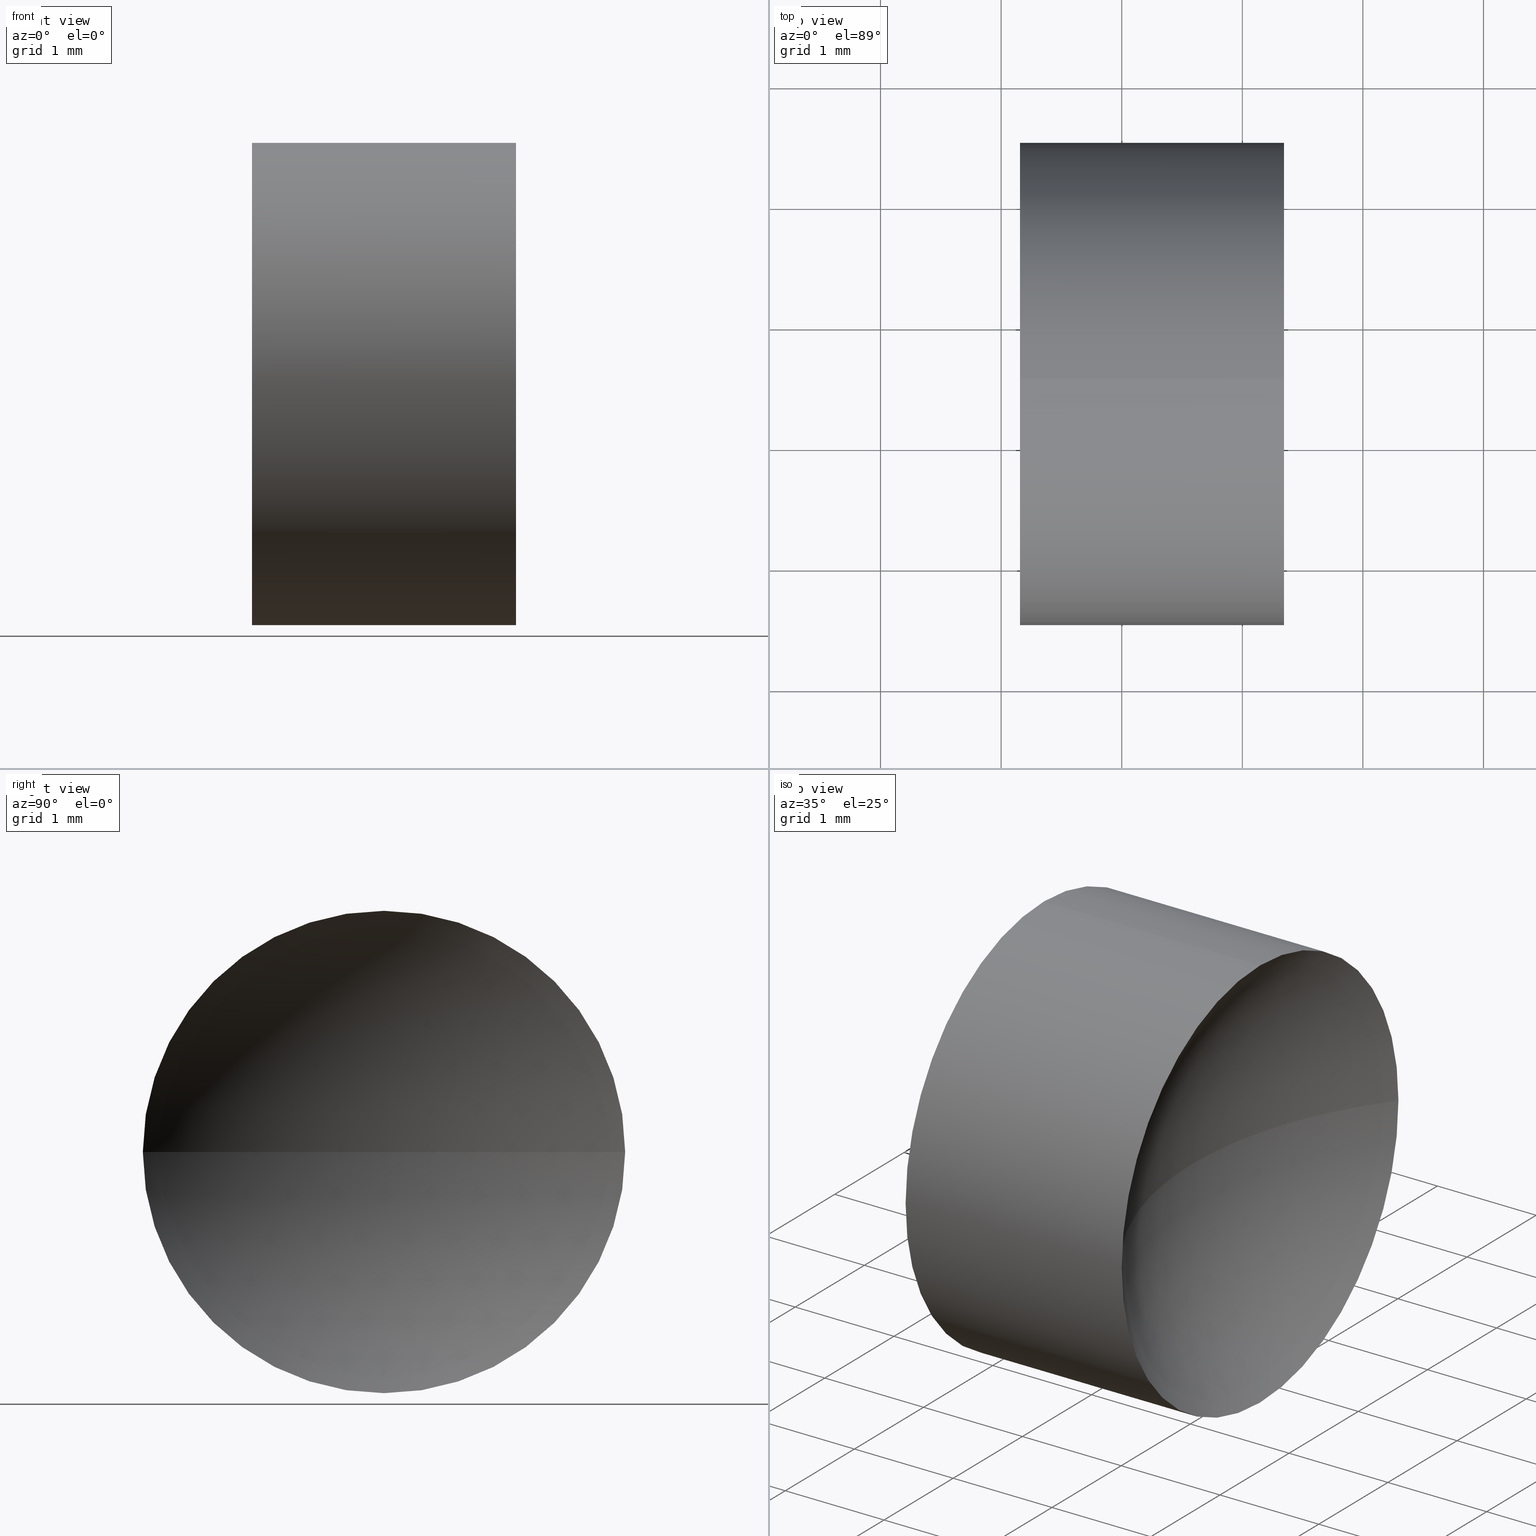
[diagram: canonical four-view strip — front | top / right | iso, engineering-drawing reading convention]
A machine part, canonical four-view strip (front | top / right | iso — engineering-drawing reading convention). The complete STEP part file that produces these views, byte-faithful:
ISO-10303-21;
HEADER;
FILE_DESCRIPTION (( 'STEP AP214' ),
    '1' );
FILE_NAME ('120121.STEP',
    '2019-06-19T01:28:10',
    ( '' ),
    ( '' ),
    'SwSTEP 2.0',
    'SolidWorks 2016',
    '' );
FILE_SCHEMA (( 'AUTOMOTIVE_DESIGN' ));
ENDSEC;

DATA;
#1 = DIRECTION ( 'NONE',  ( 0.0000000000000000000, 0.0000000000000000000, 1.000000000000000000 ) ) ;
#2 = VERTEX_POINT ( 'NONE', #105 ) ;
#3 = DIRECTION ( 'NONE',  ( -1.000000000000000000, 0.0000000000000000000, 0.0000000000000000000 ) ) ;
#4 =( GEOMETRIC_REPRESENTATION_CONTEXT ( 3 ) GLOBAL_UNCERTAINTY_ASSIGNED_CONTEXT ( ( #88 ) ) GLOBAL_UNIT_ASSIGNED_CONTEXT ( ( #98, #30, #176 ) ) REPRESENTATION_CONTEXT ( 'NONE', 'WORKASPACE' ) );
#5 = FILL_AREA_STYLE_COLOUR ( '', #13 ) ;
#6 = CARTESIAN_POINT ( 'NONE',  ( 10.34201531756644400, 6.515563045701520100, 0.0000000000000000000 ) ) ;
#7 = SURFACE_SIDE_STYLE ('',( #12 ) ) ;
#8 = CIRCLE ( 'NONE', #64, 2.000000000000000900 ) ;
#9 = EDGE_CURVE ( 'NONE', #168, #81, #8, .T. ) ;
#10 = ORIENTED_EDGE ( 'NONE', *, *, #96, .F. ) ;
#11 = AXIS2_PLACEMENT_3D ( 'NONE', #93, #18, #48 ) ;
#12 = SURFACE_STYLE_FILL_AREA ( #33 ) ;
#13 = COLOUR_RGB ( '',1.000000000000000000, 1.000000000000000000, 1.000000000000000000 ) ;
#14 = PRODUCT_DEFINITION ( 'δ֪', '', #131, #110 ) ;
#15 = VERTEX_POINT ( 'NONE', #60 ) ;
#16 = FILL_AREA_STYLE_COLOUR ( '', #186 ) ;
#17 = EDGE_CURVE ( 'NONE', #15, #39, #157, .T. ) ;
#18 = DIRECTION ( 'NONE',  ( 1.000000000000000000, 0.0000000000000000000, 0.0000000000000000000 ) ) ;
#19 = PLANE ( 'NONE',  #11 ) ;
#20 = CARTESIAN_POINT ( 'NONE',  ( 13.34525218437558500, 6.515563045701520100, -2.000000000000000900 ) ) ;
#21 = FACE_OUTER_BOUND ( 'NONE', #117, .T. ) ;
#22 = AXIS2_PLACEMENT_3D ( 'NONE', #52, #122, #152 ) ;
#23 = APPLICATION_CONTEXT ( 'automotive_design' ) ;
#24 = ORIENTED_EDGE ( 'NONE', *, *, #183, .T. ) ;
#25 = PRODUCT_DEFINITION_SHAPE ( 'NONE', 'NONE',  #14 ) ;
#26 = STYLED_ITEM ( 'NONE', ( #172 ), #74 ) ;
#27 = DIRECTION ( 'NONE',  ( 0.0000000000000000000, 0.0000000000000000000, 1.000000000000000000 ) ) ;
#28 = STYLED_ITEM ( 'NONE', ( #164 ), #140 ) ;
#29 = CARTESIAN_POINT ( 'NONE',  ( 11.15698987586548600, 6.515563045701520100, 2.000000000000000900 ) ) ;
#30 =( NAMED_UNIT ( * ) PLANE_ANGLE_UNIT ( ) SI_UNIT ( $, .RADIAN. ) );
#31 = CYLINDRICAL_SURFACE ( 'NONE', #22, 2.000000000000000900 ) ;
#32 = AXIS2_PLACEMENT_3D ( 'NONE', #154, #163, #3 ) ;
#33 = FILL_AREA_STYLE ('',( #16 ) ) ;
#34 =( NAMED_UNIT ( * ) PLANE_ANGLE_UNIT ( ) SI_UNIT ( $, .RADIAN. ) );
#35 = SURFACE_STYLE_USAGE ( .BOTH. , #127 ) ;
#36 = EDGE_LOOP ( 'NONE', ( #86, #76, #46, #136 ) ) ;
#37 = EDGE_CURVE ( 'NONE', #90, #168, #182, .T. ) ;
#38 = ORIENTED_EDGE ( 'NONE', *, *, #17, .F. ) ;
#39 = VERTEX_POINT ( 'NONE', #29 ) ;
#40 = UNCERTAINTY_MEASURE_WITH_UNIT (LENGTH_MEASURE( 1.000000000000000100E-005 ), #112, 'distance_accuracy_value', 'NONE');
#41 = ORIENTED_EDGE ( 'NONE', *, *, #87, .T. ) ;
#42 = VECTOR ( 'NONE', #174, 1000.000000000000000 ) ;
#43 = EDGE_LOOP ( 'NONE', ( #10, #156, #166, #159 ) ) ;
#44 = DIRECTION ( 'NONE',  ( -1.000000000000000000, -0.0000000000000000000, -0.0000000000000000000 ) ) ;
#45 = CARTESIAN_POINT ( 'NONE',  ( 13.34525218437558500, 6.515563045701520100, 0.0000000000000000000 ) ) ;
#46 = ORIENTED_EDGE ( 'NONE', *, *, #68, .F. ) ;
#47 = MECHANICAL_DESIGN_GEOMETRIC_PRESENTATION_REPRESENTATION (  '', ( #26 ), #104 ) ;
#48 = DIRECTION ( 'NONE',  ( 0.0000000000000000000, 0.0000000000000000000, -1.000000000000000000 ) ) ;
#49 = DIRECTION ( 'NONE',  ( -1.000000000000000000, -0.0000000000000000000, -0.0000000000000000000 ) ) ;
#50 = CARTESIAN_POINT ( 'NONE',  ( 10.34201531756644400, 6.515563045701520100, 2.000000000000000900 ) ) ;
#51 = VERTEX_POINT ( 'NONE', #171 ) ;
#52 = CARTESIAN_POINT ( 'NONE',  ( 10.34201531756644400, 6.515563045701520100, 0.0000000000000000000 ) ) ;
#53 =( LENGTH_UNIT ( ) NAMED_UNIT ( * ) SI_UNIT ( .MILLI., .METRE. ) );
#54 = EDGE_CURVE ( 'NONE', #51, #90, #119, .T. ) ;
#55 = AXIS2_PLACEMENT_3D ( 'NONE', #177, #1, #62 ) ;
#56 = FACE_OUTER_BOUND ( 'NONE', #36, .T. ) ;
#57 = EDGE_CURVE ( 'NONE', #81, #51, #115, .T. ) ;
#58 = CARTESIAN_POINT ( 'NONE',  ( 13.34525218437558500, 6.515563045701520100, 0.0000000000000000000 ) ) ;
#59 = ORIENTED_EDGE ( 'NONE', *, *, #17, .T. ) ;
#60 = CARTESIAN_POINT ( 'NONE',  ( 11.15698987586548600, 6.515563045701520100, -2.000000000000000900 ) ) ;
#61 = CARTESIAN_POINT ( 'NONE',  ( 13.34525218437558500, 6.515563045701520100, 0.0000000000000000000 ) ) ;
#62 = DIRECTION ( 'NONE',  ( 0.0000000000000000000, -1.000000000000000000, 0.0000000000000000000 ) ) ;
#63 = FACE_OUTER_BOUND ( 'NONE', #118, .T. ) ;
#64 = AXIS2_PLACEMENT_3D ( 'NONE', #61, #162, #184 ) ;
#65 = CARTESIAN_POINT ( 'NONE',  ( 0.0000000000000000000, 0.0000000000000000000, 0.0000000000000000000 ) ) ;
#66 = CARTESIAN_POINT ( 'NONE',  ( 13.34525218437558500, 4.515563045701519200, 0.0000000000000000000 ) ) ;
#67 =( NAMED_UNIT ( * ) PLANE_ANGLE_UNIT ( ) SI_UNIT ( $, .RADIAN. ) );
#68 = EDGE_CURVE ( 'NONE', #81, #2, #179, .T. ) ;
#69 = VECTOR ( 'NONE', #49, 1000.000000000000000 ) ;
#70 = AXIS2_PLACEMENT_3D ( 'NONE', #160, #135, #27 ) ;
#71 = UNCERTAINTY_MEASURE_WITH_UNIT (LENGTH_MEASURE( 1.000000000000000100E-005 ), #53, 'distance_accuracy_value', 'NONE');
#72 = ORIENTED_EDGE ( 'NONE', *, *, #37, .T. ) ;
#73 = PRODUCT ( '120121', '120121', '', ( #114 ) ) ;
#74 = MANIFOLD_SOLID_BREP ( '��ת1', #129 ) ;
#75 = DIRECTION ( 'NONE',  ( -1.000000000000000000, -0.0000000000000000000, -0.0000000000000000000 ) ) ;
#76 = ORIENTED_EDGE ( 'NONE', *, *, #96, .T. ) ;
#77 =( GEOMETRIC_REPRESENTATION_CONTEXT ( 3 ) GLOBAL_UNCERTAINTY_ASSIGNED_CONTEXT ( ( #71 ) ) GLOBAL_UNIT_ASSIGNED_CONTEXT ( ( #53, #67, #180 ) ) REPRESENTATION_CONTEXT ( 'NONE', 'WORKASPACE' ) );
#78 = CARTESIAN_POINT ( 'NONE',  ( 15.90698987586548400, 6.515563045701520100, 0.0000000000000000000 ) ) ;
#79 = CARTESIAN_POINT ( 'NONE',  ( 15.90698987586548400, 6.515563045701520100, 0.0000000000000000000 ) ) ;
#80 = CARTESIAN_POINT ( 'NONE',  ( 11.15698987586548600, 6.515563045701520100, 0.0000000000000000000 ) ) ;
#81 = VERTEX_POINT ( 'NONE', #66 ) ;
#82 = DIRECTION ( 'NONE',  ( 0.0000000000000000000, 0.0000000000000000000, 1.000000000000000000 ) ) ;
#83 = ORIENTED_EDGE ( 'NONE', *, *, #183, .F. ) ;
#84 = PRESENTATION_LAYER_ASSIGNMENT (  '', '', ( #26 ) ) ;
#85 = EDGE_LOOP ( 'NONE', ( #41, #59 ) ) ;
#86 = ORIENTED_EDGE ( 'NONE', *, *, #37, .F. ) ;
#87 = EDGE_CURVE ( 'NONE', #39, #15, #175, .T. ) ;
#88 = UNCERTAINTY_MEASURE_WITH_UNIT (LENGTH_MEASURE( 1.000000000000000100E-005 ), #98, 'distance_accuracy_value', 'NONE');
#89 = ADVANCED_FACE ( 'NONE', ( #21 ), #31, .T. ) ;
#90 = VERTEX_POINT ( 'NONE', #123 ) ;
#91 = DIRECTION ( 'NONE',  ( 0.0000000000000000000, 0.0000000000000000000, 1.000000000000000000 ) ) ;
#92 = ADVANCED_FACE ( 'NONE', ( #142 ), #111, .F. ) ;
#93 = CARTESIAN_POINT ( 'NONE',  ( 11.15698987586548600, 6.515563045701520100, 0.0000000000000000000 ) ) ;
#94 = DIRECTION ( 'NONE',  ( 0.0000000000000000000, -1.000000000000000000, 0.0000000000000000000 ) ) ;
#95 = APPLICATION_PROTOCOL_DEFINITION ( 'draft international standard', 'automotive_design', 1998, #113 ) ;
#96 = EDGE_CURVE ( 'NONE', #90, #2, #101, .T. ) ;
#97 = DIRECTION ( 'NONE',  ( 0.0000000000000000000, -1.000000000000000000, -1.224646799147353200E-016 ) ) ;
#98 =( LENGTH_UNIT ( ) NAMED_UNIT ( * ) SI_UNIT ( .MILLI., .METRE. ) );
#99 = ORIENTED_EDGE ( 'NONE', *, *, #57, .T. ) ;
#100 = AXIS2_PLACEMENT_3D ( 'NONE', #6, #141, #167 ) ;
#101 = CIRCLE ( 'NONE', #169, 3.249999999999999600 ) ;
#102 = SHAPE_DEFINITION_REPRESENTATION ( #25, #140 ) ;
#103 = FACE_OUTER_BOUND ( 'NONE', #85, .T. ) ;
#104 =( GEOMETRIC_REPRESENTATION_CONTEXT ( 3 ) GLOBAL_UNCERTAINTY_ASSIGNED_CONTEXT ( ( #40 ) ) GLOBAL_UNIT_ASSIGNED_CONTEXT ( ( #112, #34, #143 ) ) REPRESENTATION_CONTEXT ( 'NONE', 'WORKASPACE' ) );
#105 = CARTESIAN_POINT ( 'NONE',  ( 12.65698987586548400, 6.515563045701520100, 0.0000000000000000000 ) ) ;
#106 = ADVANCED_FACE ( 'NONE', ( #63 ), #144, .T. ) ;
#107 = DIRECTION ( 'NONE',  ( 0.0000000000000000000, 0.0000000000000000000, 1.000000000000000000 ) ) ;
#108 = ADVANCED_FACE ( 'NONE', ( #103 ), #19, .F. ) ;
#109 = DIRECTION ( 'NONE',  ( -1.000000000000000000, -0.0000000000000000000, -0.0000000000000000000 ) ) ;
#110 = PRODUCT_DEFINITION_CONTEXT ( 'detailed design', #23, 'design' ) ;
#111 = SPHERICAL_SURFACE ( 'NONE', #55, 3.249999999999999600 ) ;
#112 =( LENGTH_UNIT ( ) NAMED_UNIT ( * ) SI_UNIT ( .MILLI., .METRE. ) );
#113 = APPLICATION_CONTEXT ( 'automotive_design' ) ;
#114 = PRODUCT_CONTEXT ( 'NONE', #113, 'mechanical' ) ;
#115 = CIRCLE ( 'NONE', #134, 2.000000000000000900 ) ;
#116 = MECHANICAL_DESIGN_GEOMETRIC_PRESENTATION_REPRESENTATION (  '', ( #28 ), #77 ) ;
#117 = EDGE_LOOP ( 'NONE', ( #72, #148, #155, #83, #145 ) ) ;
#118 = EDGE_LOOP ( 'NONE', ( #132, #126, #99, #24, #38 ) ) ;
#119 = CIRCLE ( 'NONE', #70, 2.000000000000000900 ) ;
#120 = AXIS2_PLACEMENT_3D ( 'NONE', #78, #150, #94 ) ;
#121 = DIRECTION ( 'NONE',  ( -1.000000000000000000, -0.0000000000000000000, -0.0000000000000000000 ) ) ;
#122 = DIRECTION ( 'NONE',  ( -1.000000000000000000, -0.0000000000000000000, -0.0000000000000000000 ) ) ;
#123 = CARTESIAN_POINT ( 'NONE',  ( 13.34525218437558500, 8.515563045701521000, 2.449293598294707900E-016 ) ) ;
#124 = PRODUCT_RELATED_PRODUCT_CATEGORY ( 'part', '', ( #73 ) ) ;
#125 = FILL_AREA_STYLE ('',( #5 ) ) ;
#126 = ORIENTED_EDGE ( 'NONE', *, *, #9, .T. ) ;
#127 = SURFACE_SIDE_STYLE ('',( #173 ) ) ;
#128 = APPLICATION_PROTOCOL_DEFINITION ( 'draft international standard', 'automotive_design', 1998, #23 ) ;
#129 = CLOSED_SHELL ( 'NONE', ( #89, #146, #92, #106, #108 ) ) ;
#130 = LINE ( 'NONE', #50, #42 ) ;
#131 = PRODUCT_DEFINITION_FORMATION_WITH_SPECIFIED_SOURCE ( '�κ�', '', #73, .NOT_KNOWN. ) ;
#132 = ORIENTED_EDGE ( 'NONE', *, *, #181, .F. ) ;
#133 = AXIS2_PLACEMENT_3D ( 'NONE', #45, #75, #147 ) ;
#134 = AXIS2_PLACEMENT_3D ( 'NONE', #58, #121, #107 ) ;
#135 = DIRECTION ( 'NONE',  ( -1.000000000000000000, -0.0000000000000000000, -0.0000000000000000000 ) ) ;
#136 = ORIENTED_EDGE ( 'NONE', *, *, #9, .F. ) ;
#137 = LINE ( 'NONE', #165, #69 ) ;
#138 = SURFACE_STYLE_USAGE ( .BOTH. , #7 ) ;
#139 = PRESENTATION_LAYER_ASSIGNMENT (  '', '', ( #28 ) ) ;
#140 = ADVANCED_BREP_SHAPE_REPRESENTATION ( '120121', ( #74, #149 ), #4 ) ;
#141 = DIRECTION ( 'NONE',  ( -1.000000000000000000, -0.0000000000000000000, -0.0000000000000000000 ) ) ;
#142 = FACE_OUTER_BOUND ( 'NONE', #43, .T. ) ;
#143 =( NAMED_UNIT ( * ) SI_UNIT ( $, .STERADIAN. ) SOLID_ANGLE_UNIT ( ) );
#144 = CYLINDRICAL_SURFACE ( 'NONE', #100, 2.000000000000000900 ) ;
#145 = ORIENTED_EDGE ( 'NONE', *, *, #54, .T. ) ;
#146 = ADVANCED_FACE ( 'NONE', ( #56 ), #170, .F. ) ;
#147 = DIRECTION ( 'NONE',  ( 0.0000000000000000000, 0.0000000000000000000, 1.000000000000000000 ) ) ;
#148 = ORIENTED_EDGE ( 'NONE', *, *, #181, .T. ) ;
#149 = AXIS2_PLACEMENT_3D ( 'NONE', #65, #82, #178 ) ;
#150 = DIRECTION ( 'NONE',  ( 0.0000000000000000000, 0.0000000000000000000, 1.000000000000000000 ) ) ;
#151 = DIRECTION ( 'NONE',  ( 0.0000000000000000000, -1.224646799147353200E-016, 1.000000000000000000 ) ) ;
#152 = DIRECTION ( 'NONE',  ( 0.0000000000000000000, 0.0000000000000000000, 1.000000000000000000 ) ) ;
#153 = DIRECTION ( 'NONE',  ( 0.0000000000000000000, 0.0000000000000000000, 1.000000000000000000 ) ) ;
#154 = CARTESIAN_POINT ( 'NONE',  ( 15.90698987586548400, 6.515563045701520100, 0.0000000000000000000 ) ) ;
#155 = ORIENTED_EDGE ( 'NONE', *, *, #87, .F. ) ;
#156 = ORIENTED_EDGE ( 'NONE', *, *, #54, .F. ) ;
#157 = CIRCLE ( 'NONE', #185, 2.000000000000000900 ) ;
#158 = AXIS2_PLACEMENT_3D ( 'NONE', #80, #109, #153 ) ;
#159 = ORIENTED_EDGE ( 'NONE', *, *, #68, .T. ) ;
#160 = CARTESIAN_POINT ( 'NONE',  ( 13.34525218437558500, 6.515563045701520100, 0.0000000000000000000 ) ) ;
#161 = CARTESIAN_POINT ( 'NONE',  ( 11.15698987586548600, 6.515563045701520100, 0.0000000000000000000 ) ) ;
#162 = DIRECTION ( 'NONE',  ( -1.000000000000000000, -0.0000000000000000000, -0.0000000000000000000 ) ) ;
#163 = DIRECTION ( 'NONE',  ( 0.0000000000000000000, 0.0000000000000000000, -1.000000000000000000 ) ) ;
#164 = PRESENTATION_STYLE_ASSIGNMENT (( #35 ) ) ;
#165 = CARTESIAN_POINT ( 'NONE',  ( 10.34201531756644400, 6.515563045701520100, -2.000000000000000900 ) ) ;
#166 = ORIENTED_EDGE ( 'NONE', *, *, #57, .F. ) ;
#167 = DIRECTION ( 'NONE',  ( 0.0000000000000000000, 0.0000000000000000000, 1.000000000000000000 ) ) ;
#168 = VERTEX_POINT ( 'NONE', #20 ) ;
#169 = AXIS2_PLACEMENT_3D ( 'NONE', #79, #151, #97 ) ;
#170 = SPHERICAL_SURFACE ( 'NONE', #120, 3.249999999999999600 ) ;
#171 = CARTESIAN_POINT ( 'NONE',  ( 13.34525218437558500, 6.515563045701520100, 2.000000000000000900 ) ) ;
#172 = PRESENTATION_STYLE_ASSIGNMENT (( #138 ) ) ;
#173 = SURFACE_STYLE_FILL_AREA ( #125 ) ;
#174 = DIRECTION ( 'NONE',  ( -1.000000000000000000, -0.0000000000000000000, -0.0000000000000000000 ) ) ;
#175 = CIRCLE ( 'NONE', #158, 2.000000000000000900 ) ;
#176 =( NAMED_UNIT ( * ) SI_UNIT ( $, .STERADIAN. ) SOLID_ANGLE_UNIT ( ) );
#177 = CARTESIAN_POINT ( 'NONE',  ( 15.90698987586548400, 6.515563045701520100, 0.0000000000000000000 ) ) ;
#178 = DIRECTION ( 'NONE',  ( 1.000000000000000000, 0.0000000000000000000, 0.0000000000000000000 ) ) ;
#179 = CIRCLE ( 'NONE', #32, 3.249999999999999600 ) ;
#180 =( NAMED_UNIT ( * ) SI_UNIT ( $, .STERADIAN. ) SOLID_ANGLE_UNIT ( ) );
#181 = EDGE_CURVE ( 'NONE', #168, #15, #137, .T. ) ;
#182 = CIRCLE ( 'NONE', #133, 2.000000000000000900 ) ;
#183 = EDGE_CURVE ( 'NONE', #51, #39, #130, .T. ) ;
#184 = DIRECTION ( 'NONE',  ( 0.0000000000000000000, 0.0000000000000000000, 1.000000000000000000 ) ) ;
#185 = AXIS2_PLACEMENT_3D ( 'NONE', #161, #44, #91 ) ;
#186 = COLOUR_RGB ( '',1.000000000000000000, 1.000000000000000000, 1.000000000000000000 ) ;
ENDSEC;
END-ISO-10303-21;
